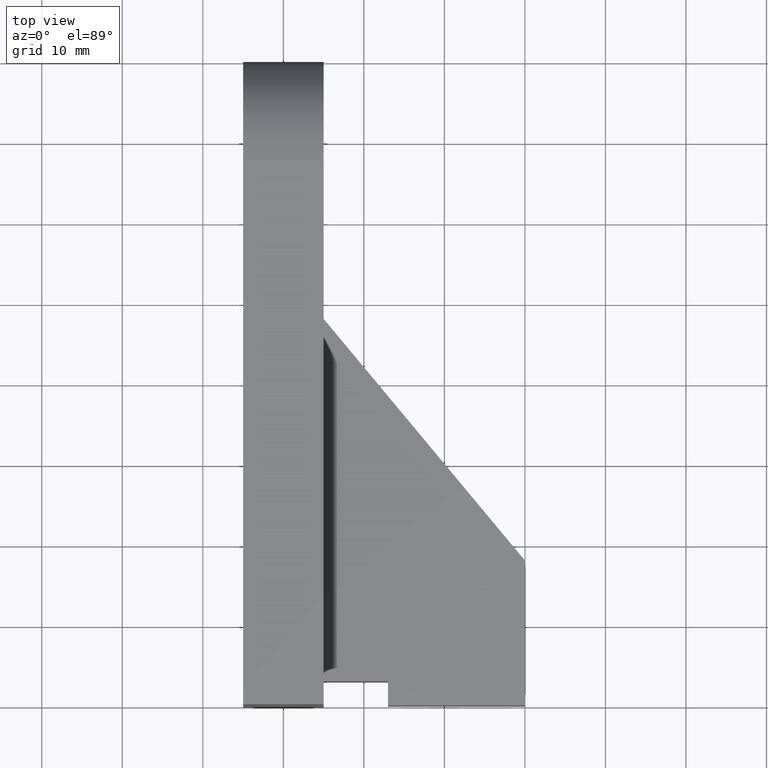
[diagram: clean part render]
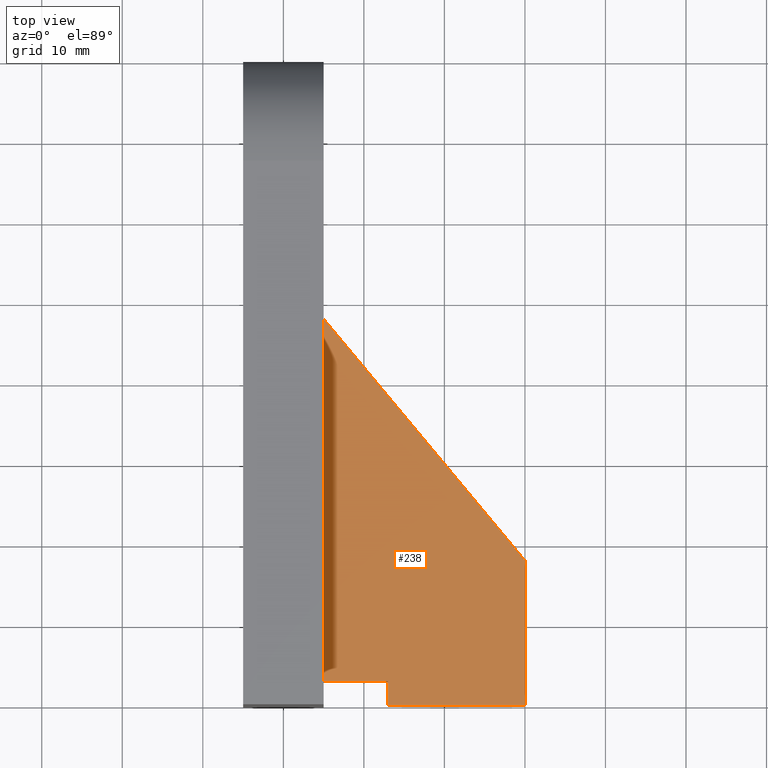
[diagram: same view with one face highlighted and labeled with its STEP entity id]
A machine part, top view. The second image highlights one B-rep face of the part: STEP entity #238.
In plain terms, the highlighted planar face has unit normal (0, 0, 1).
Its self-contained STEP definition (entity closure, byte-faithful):
#31=FACE_OUTER_BOUND('',#45,.T.);
#45=EDGE_LOOP('',(#208,#209,#210,#211,#212,#213));
#53=LINE('',#350,#81);
#67=LINE('',#382,#95);
#70=LINE('',#386,#98);
#71=LINE('',#389,#99);
#73=LINE('',#393,#101);
#75=LINE('',#396,#103);
#81=VECTOR('',#285,10.);
#95=VECTOR('',#315,10.);
#98=VECTOR('',#320,10.);
#99=VECTOR('',#323,10.);
#101=VECTOR('',#327,10.);
#103=VECTOR('',#331,10.);
#110=VERTEX_POINT('',#347);
#111=VERTEX_POINT('',#349);
#120=VERTEX_POINT('',#380);
#121=VERTEX_POINT('',#381);
#122=VERTEX_POINT('',#388);
#123=VERTEX_POINT('',#392);
#130=EDGE_CURVE('',#110,#111,#53,.T.);
#145=EDGE_CURVE('',#120,#121,#67,.T.);
#148=EDGE_CURVE('',#121,#110,#70,.T.);
#149=EDGE_CURVE('',#111,#122,#71,.T.);
#151=EDGE_CURVE('',#122,#123,#73,.T.);
#153=EDGE_CURVE('',#123,#120,#75,.T.);
#208=ORIENTED_EDGE('',*,*,#145,.F.);
#209=ORIENTED_EDGE('',*,*,#153,.F.);
#210=ORIENTED_EDGE('',*,*,#151,.F.);
#211=ORIENTED_EDGE('',*,*,#149,.F.);
#212=ORIENTED_EDGE('',*,*,#130,.F.);
#213=ORIENTED_EDGE('',*,*,#148,.F.);
#225=PLANE('',#273);
#238=ADVANCED_FACE('',(#31),#225,.T.);
#273=AXIS2_PLACEMENT_3D('',#397,#332,#333);
#285=DIRECTION('',(0.,1.,0.));
#315=DIRECTION('',(0.,1.,0.));
#320=DIRECTION('',(-1.,-2.77555756156289E-16,0.));
#323=DIRECTION('',(0.64018439966448,-0.768221279597376,0.));
#327=DIRECTION('',(1.85037170770859E-16,-1.,0.));
#331=DIRECTION('',(-1.,-1.72087780284837E-16,0.));
#332=DIRECTION('center_axis',(0.,0.,1.));
#333=DIRECTION('ref_axis',(1.,0.,0.));
#347=CARTESIAN_POINT('',(-25.,3.,5.));
#349=CARTESIAN_POINT('',(-25.,48.,5.));
#350=CARTESIAN_POINT('',(-25.,3.,5.));
#380=CARTESIAN_POINT('',(-17.,-3.33066907387547E-15,5.));
#381=CARTESIAN_POINT('',(-17.,3.,5.));
#382=CARTESIAN_POINT('',(-17.,-3.33066907387547E-15,5.));
#386=CARTESIAN_POINT('',(-17.,3.,5.));
#388=CARTESIAN_POINT('',(-1.11022302462516E-15,18.,5.));
#389=CARTESIAN_POINT('',(-25.,48.,5.));
#392=CARTESIAN_POINT('',(2.22044604925031E-15,-4.05176809033237E-16,5.));
#393=CARTESIAN_POINT('',(-1.11022302462516E-15,18.,5.));
#396=CARTESIAN_POINT('',(2.22044604925031E-15,-4.05176809033237E-16,5.));
#397=CARTESIAN_POINT('Origin',(-15.1989360300154,20.1973547294143,5.));